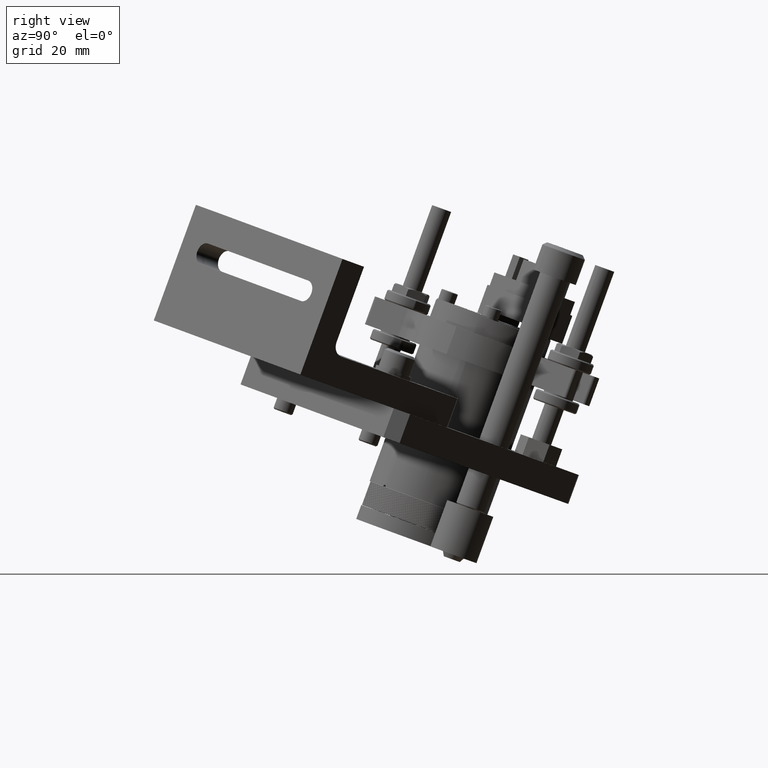
[diagram: clean part render]
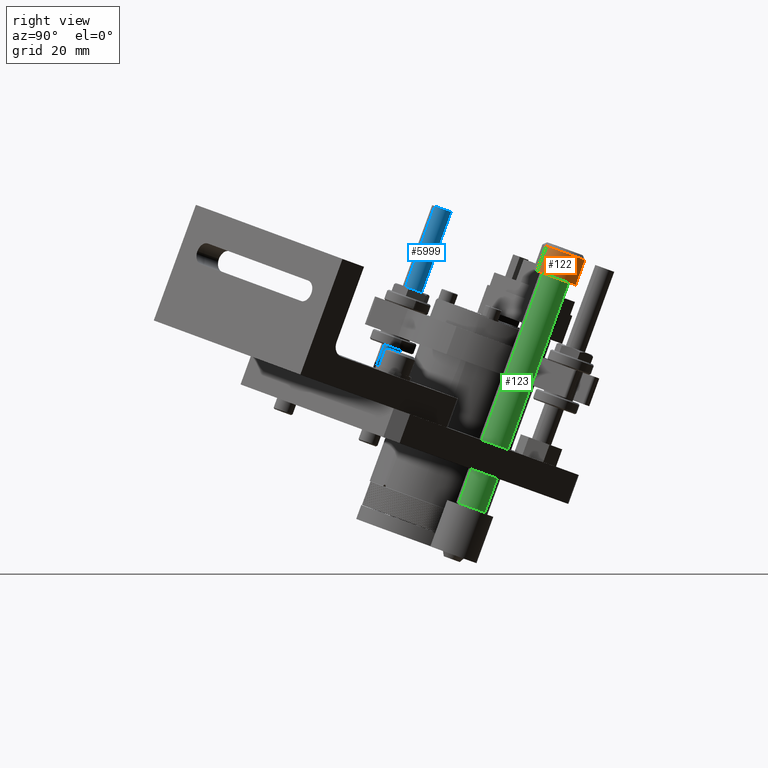
[diagram: same view with three faces highlighted in distinct colors, each labeled with its STEP entity id]
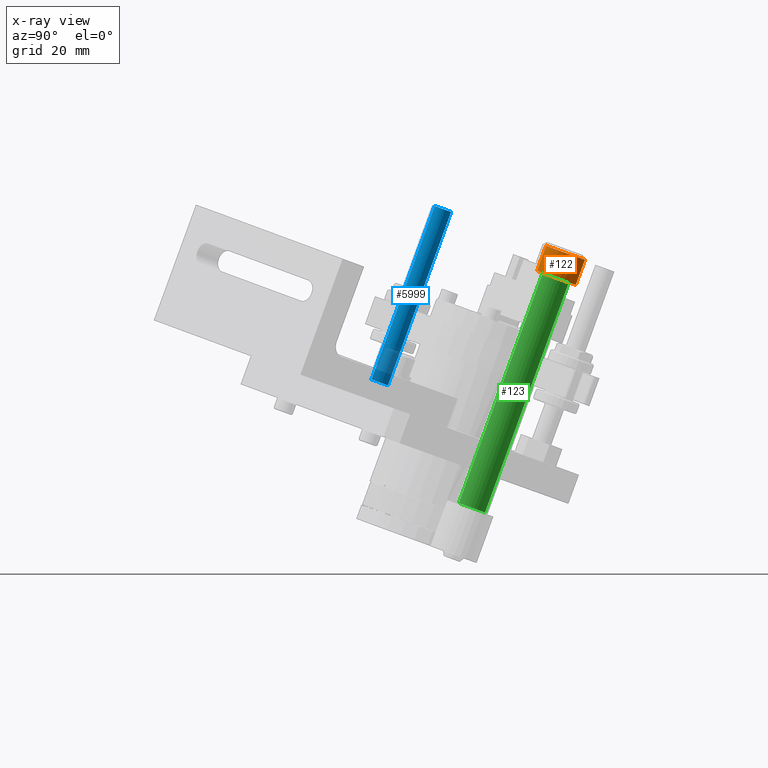
[diagram: x-ray of the same camera — body ghosted, the three highlighted faces saturated]
A machine part, right view with three faces highlighted in distinct colors.
The next image is the same camera in x-ray (body ghosted, the three faces saturated) — at least one of them is partly hidden behind the body in this view.
Their STEP definitions:

[orange] entity #122 — the highlighted cylindrical surface (edge-blend (fillet) strip) has radius 4.699 mm, axis along (-0.0041, -0.3425, -0.9395).
#122 = ADVANCED_FACE ( 'NONE', ( #18651 ), #18652, .T. ) ;
#2019 = EDGE_LOOP ( 'NONE', ( #13839, #13838, #13836, #13834 ) ) ;
#3570 = VERTEX_POINT ( 'NONE', #10699 ) ;
#3571 = VERTEX_POINT ( 'NONE', #10700 ) ;
#3572 = VERTEX_POINT ( 'NONE', #10701 ) ;
#3577 = VERTEX_POINT ( 'NONE', #10706 ) ;
#8019 = AXIS2_PLACEMENT_3D ( 'NONE', #13297, #13299, #13300 ) ;
#8020 = AXIS2_PLACEMENT_3D ( 'NONE', #13312, #13314, #13316 ) ;
#10699 = CARTESIAN_POINT ( 'NONE',  ( 0.1850000000000000000, 0.0000000000000000000, -2.217000000000000500 ) ) ;
#10700 = CARTESIAN_POINT ( 'NONE',  ( 0.1850000000000000000, 0.0000000000000000000, -2.000000000000000000 ) ) ;
#10701 = CARTESIAN_POINT ( 'NONE',  ( -0.1850000000000000000, 2.265596578422603000E-017, -2.000000000000000000 ) ) ;
#10706 = CARTESIAN_POINT ( 'NONE',  ( -0.1850000000000000000, 2.265596578422603000E-017, -2.217000000000000500 ) ) ;
#13297 = CARTESIAN_POINT ( 'NONE',  ( 0.0000000000000000000, 0.0000000000000000000, -2.217000000000000500 ) ) ;
#13299 = DIRECTION ( 'NONE',  ( 0.0000000000000000000, 0.0000000000000000000, 1.000000000000000000 ) ) ;
#13300 = DIRECTION ( 'NONE',  ( -1.000000000000000000, 0.0000000000000000000, 0.0000000000000000000 ) ) ;
#13308 = CARTESIAN_POINT ( 'NONE',  ( -0.1850000000000000000, 2.265596578422603000E-017, -2.246999999999999900 ) ) ;
#13309 = DIRECTION ( 'NONE',  ( -0.0000000000000000000, -0.0000000000000000000, 1.000000000000000000 ) ) ;
#13312 = CARTESIAN_POINT ( 'NONE',  ( 0.0000000000000000000, 0.0000000000000000000, -2.000000000000000000 ) ) ;
#13314 = DIRECTION ( 'NONE',  ( 0.0000000000000000000, 0.0000000000000000000, -1.000000000000000000 ) ) ;
#13316 = DIRECTION ( 'NONE',  ( -1.000000000000000000, 0.0000000000000000000, 0.0000000000000000000 ) ) ;
#13318 = CARTESIAN_POINT ( 'NONE',  ( 0.1850000000000000000, 0.0000000000000000000, -2.246999999999999900 ) ) ;
#13320 = DIRECTION ( 'NONE',  ( -0.0000000000000000000, -0.0000000000000000000, 1.000000000000000000 ) ) ;
#13834 = ORIENTED_EDGE ( 'NONE', *, *, #17005, .F. ) ;
#13836 = ORIENTED_EDGE ( 'NONE', *, *, #17004, .T. ) ;
#13838 = ORIENTED_EDGE ( 'NONE', *, *, #17003, .T. ) ;
#13839 = ORIENTED_EDGE ( 'NONE', *, *, #17001, .T. ) ;
#14425 = CIRCLE ( 'NONE', #8019, 0.1850000000000000000 ) ;
#14427 = LINE ( 'NONE', #13308, #14428 ) ;
#14428 = VECTOR ( 'NONE', #13309, 39.37007874015748100 ) ;
#14429 = LINE ( 'NONE', #13318, #14431 ) ;
#14430 = CIRCLE ( 'NONE', #8020, 0.1850000000000000000 ) ;
#14431 = VECTOR ( 'NONE', #13320, 39.37007874015748100 ) ;
#17001 = EDGE_CURVE ( 'NONE', #3570, #3577, #14425, .T. ) ;
#17003 = EDGE_CURVE ( 'NONE', #3577, #3572, #14427, .T. ) ;
#17004 = EDGE_CURVE ( 'NONE', #3572, #3571, #14430, .T. ) ;
#17005 = EDGE_CURVE ( 'NONE', #3570, #3571, #14429, .T. ) ;
#17281 = AXIS2_PLACEMENT_3D ( 'NONE', #19028, #19029, #19030 ) ;
#18651 = FACE_OUTER_BOUND ( 'NONE', #2019, .T. ) ;
#18652 = CYLINDRICAL_SURFACE ( 'NONE', #17281, 0.1850000000000000000 ) ;
#19028 = CARTESIAN_POINT ( 'NONE',  ( 0.0000000000000000000, 0.0000000000000000000, -2.246999999999999900 ) ) ;
#19029 = DIRECTION ( 'NONE',  ( -0.0000000000000000000, -0.0000000000000000000, 1.000000000000000000 ) ) ;
#19030 = DIRECTION ( 'NONE',  ( 1.000000000000000000, 0.0000000000000000000, 0.0000000000000000000 ) ) ;

[blue] entity #5999 — the highlighted cylindrical surface (edge-blend (fillet) strip) has radius 2.0828 mm, axis along (-0.0041, -0.3425, -0.9395).
#2046 = EDGE_LOOP ( 'NONE', ( #13543, #13539, #13533, #13529 ) ) ;
#3592 = VERTEX_POINT ( 'NONE', #10721 ) ;
#3597 = VERTEX_POINT ( 'NONE', #10726 ) ;
#3658 = VERTEX_POINT ( 'NONE', #10787 ) ;
#3719 = VERTEX_POINT ( 'NONE', #10848 ) ;
#5999 = ADVANCED_FACE ( 'NONE', ( #8788 ), #8789, .T. ) ;
#7590 = AXIS2_PLACEMENT_3D ( 'NONE', #11080, #11081, #11082 ) ;
#7931 = AXIS2_PLACEMENT_3D ( 'NONE', #12509, #12510, #12511 ) ;
#7945 = AXIS2_PLACEMENT_3D ( 'NONE', #12621, #12622, #12623 ) ;
#8788 = FACE_OUTER_BOUND ( 'NONE', #2046, .T. ) ;
#8789 = CYLINDRICAL_SURFACE ( 'NONE', #7590, 0.08200000000000000300 ) ;
#9413 = CIRCLE ( 'NONE', #7931, 0.08200000000000000300 ) ;
#9496 = LINE ( 'NONE', #12624, #9498 ) ;
#9497 = CIRCLE ( 'NONE', #7945, 0.08200000000000000300 ) ;
#9498 = VECTOR ( 'NONE', #12625, 39.37007874015748100 ) ;
#9506 = LINE ( 'NONE', #12638, #9508 ) ;
#9508 = VECTOR ( 'NONE', #12639, 39.37007874015748100 ) ;
#10721 = CARTESIAN_POINT ( 'NONE',  ( 0.08200000000000000300, 0.0000000000000000000, -0.3999999999999999700 ) ) ;
#10726 = CARTESIAN_POINT ( 'NONE',  ( -0.08200000000000000300, 1.004210375300829400E-017, -0.3999999999999999700 ) ) ;
#10787 = CARTESIAN_POINT ( 'NONE',  ( -0.08200000000000000300, 1.004210375300829400E-017, -1.899999999999999900 ) ) ;
#10848 = CARTESIAN_POINT ( 'NONE',  ( 0.08200000000000000300, 0.0000000000000000000, -1.899999999999999900 ) ) ;
#11080 = CARTESIAN_POINT ( 'NONE',  ( 0.0000000000000000000, 0.0000000000000000000, -1.899999999999999900 ) ) ;
#11081 = DIRECTION ( 'NONE',  ( 0.0000000000000000000, 0.0000000000000000000, 1.000000000000000000 ) ) ;
#11082 = DIRECTION ( 'NONE',  ( 1.000000000000000000, 0.0000000000000000000, 0.0000000000000000000 ) ) ;
#12509 = CARTESIAN_POINT ( 'NONE',  ( 0.0000000000000000000, 0.0000000000000000000, -1.899999999999999900 ) ) ;
#12510 = DIRECTION ( 'NONE',  ( 0.0000000000000000000, 0.0000000000000000000, -1.000000000000000000 ) ) ;
#12511 = DIRECTION ( 'NONE',  ( -1.000000000000000000, 0.0000000000000000000, 0.0000000000000000000 ) ) ;
#12621 = CARTESIAN_POINT ( 'NONE',  ( 0.0000000000000000000, 0.0000000000000000000, -0.3999999999999999700 ) ) ;
#12622 = DIRECTION ( 'NONE',  ( 0.0000000000000000000, 0.0000000000000000000, -1.000000000000000000 ) ) ;
#12623 = DIRECTION ( 'NONE',  ( -1.000000000000000000, 0.0000000000000000000, 0.0000000000000000000 ) ) ;
#12624 = CARTESIAN_POINT ( 'NONE',  ( -0.08200000000000000300, 1.004210375300829400E-017, -1.899999999999999900 ) ) ;
#12625 = DIRECTION ( 'NONE',  ( 0.0000000000000000000, 0.0000000000000000000, 1.000000000000000000 ) ) ;
#12638 = CARTESIAN_POINT ( 'NONE',  ( 0.08200000000000000300, 0.0000000000000000000, -1.899999999999999900 ) ) ;
#12639 = DIRECTION ( 'NONE',  ( 0.0000000000000000000, 0.0000000000000000000, 1.000000000000000000 ) ) ;
#13529 = ORIENTED_EDGE ( 'NONE', *, *, #16760, .T. ) ;
#13533 = ORIENTED_EDGE ( 'NONE', *, *, #16767, .T. ) ;
#13539 = ORIENTED_EDGE ( 'NONE', *, *, #16711, .F. ) ;
#13543 = ORIENTED_EDGE ( 'NONE', *, *, #16761, .F. ) ;
#16711 = EDGE_CURVE ( 'NONE', #3719, #3658, #9413, .T. ) ;
#16760 = EDGE_CURVE ( 'NONE', #3592, #3597, #9497, .T. ) ;
#16761 = EDGE_CURVE ( 'NONE', #3658, #3597, #9496, .T. ) ;
#16767 = EDGE_CURVE ( 'NONE', #3719, #3592, #9506, .T. ) ;

[green] entity #123 — the highlighted cylindrical surface (edge-blend (fillet) strip) has radius 3.175 mm, axis along (-0.0041, -0.3425, -0.9395).
#123 = ADVANCED_FACE ( 'NONE', ( #18653 ), #18654, .T. ) ;
#2173 = EDGE_LOOP ( 'NONE', ( #13833, #13830, #13829, #13827 ) ) ;
#3568 = VERTEX_POINT ( 'NONE', #10697 ) ;
#3575 = VERTEX_POINT ( 'NONE', #10704 ) ;
#3579 = VERTEX_POINT ( 'NONE', #10708 ) ;
#3602 = VERTEX_POINT ( 'NONE', #10731 ) ;
#8017 = AXIS2_PLACEMENT_3D ( 'NONE', #13275, #13277, #13279 ) ;
#8021 = AXIS2_PLACEMENT_3D ( 'NONE', #13323, #13325, #13327 ) ;
#10697 = CARTESIAN_POINT ( 'NONE',  ( -0.1250000000000000600, 1.530808498934192100E-017, -2.000000000000000000 ) ) ;
#10704 = CARTESIAN_POINT ( 'NONE',  ( -0.1250000000000000600, 1.530808498934192100E-017, -0.01000000000000016700 ) ) ;
#10708 = CARTESIAN_POINT ( 'NONE',  ( 0.1250000000000000600, 0.0000000000000000000, -0.01000000000000016700 ) ) ;
#10731 = CARTESIAN_POINT ( 'NONE',  ( 0.1250000000000000600, 0.0000000000000000000, -2.000000000000000000 ) ) ;
#13275 = CARTESIAN_POINT ( 'NONE',  ( 0.0000000000000000000, 0.0000000000000000000, -0.01000000000000016700 ) ) ;
#13277 = DIRECTION ( 'NONE',  ( 0.0000000000000000000, 0.0000000000000000000, -1.000000000000000000 ) ) ;
#13279 = DIRECTION ( 'NONE',  ( 1.000000000000000000, 0.0000000000000000000, 0.0000000000000000000 ) ) ;
#13323 = CARTESIAN_POINT ( 'NONE',  ( 0.0000000000000000000, 0.0000000000000000000, -2.000000000000000000 ) ) ;
#13325 = DIRECTION ( 'NONE',  ( -0.0000000000000000000, -0.0000000000000000000, 1.000000000000000000 ) ) ;
#13327 = DIRECTION ( 'NONE',  ( -1.000000000000000000, 0.0000000000000000000, 0.0000000000000000000 ) ) ;
#13329 = CARTESIAN_POINT ( 'NONE',  ( -0.1250000000000000600, 1.530808498934192100E-017, -2.000000000000000000 ) ) ;
#13331 = DIRECTION ( 'NONE',  ( 0.0000000000000000000, 0.0000000000000000000, 1.000000000000000000 ) ) ;
#13334 = CARTESIAN_POINT ( 'NONE',  ( 0.1250000000000000600, 0.0000000000000000000, -2.000000000000000000 ) ) ;
#13336 = DIRECTION ( 'NONE',  ( 0.0000000000000000000, 0.0000000000000000000, 1.000000000000000000 ) ) ;
#13827 = ORIENTED_EDGE ( 'NONE', *, *, #17008, .F. ) ;
#13829 = ORIENTED_EDGE ( 'NONE', *, *, #16997, .T. ) ;
#13830 = ORIENTED_EDGE ( 'NONE', *, *, #17007, .T. ) ;
#13833 = ORIENTED_EDGE ( 'NONE', *, *, #17006, .T. ) ;
#14419 = CIRCLE ( 'NONE', #8017, 0.1250000000000000600 ) ;
#14432 = LINE ( 'NONE', #13329, #14434 ) ;
#14433 = CIRCLE ( 'NONE', #8021, 0.1250000000000000600 ) ;
#14434 = VECTOR ( 'NONE', #13331, 39.37007874015748100 ) ;
#14435 = LINE ( 'NONE', #13334, #14436 ) ;
#14436 = VECTOR ( 'NONE', #13336, 39.37007874015748100 ) ;
#16997 = EDGE_CURVE ( 'NONE', #3575, #3579, #14419, .T. ) ;
#17006 = EDGE_CURVE ( 'NONE', #3602, #3568, #14433, .T. ) ;
#17007 = EDGE_CURVE ( 'NONE', #3568, #3575, #14432, .T. ) ;
#17008 = EDGE_CURVE ( 'NONE', #3602, #3579, #14435, .T. ) ;
#17282 = AXIS2_PLACEMENT_3D ( 'NONE', #19031, #19032, #19033 ) ;
#18653 = FACE_OUTER_BOUND ( 'NONE', #2173, .T. ) ;
#18654 = CYLINDRICAL_SURFACE ( 'NONE', #17282, 0.1250000000000000600 ) ;
#19031 = CARTESIAN_POINT ( 'NONE',  ( 0.0000000000000000000, 0.0000000000000000000, -2.000000000000000000 ) ) ;
#19032 = DIRECTION ( 'NONE',  ( 0.0000000000000000000, 0.0000000000000000000, 1.000000000000000000 ) ) ;
#19033 = DIRECTION ( 'NONE',  ( 1.000000000000000000, 0.0000000000000000000, 0.0000000000000000000 ) ) ;